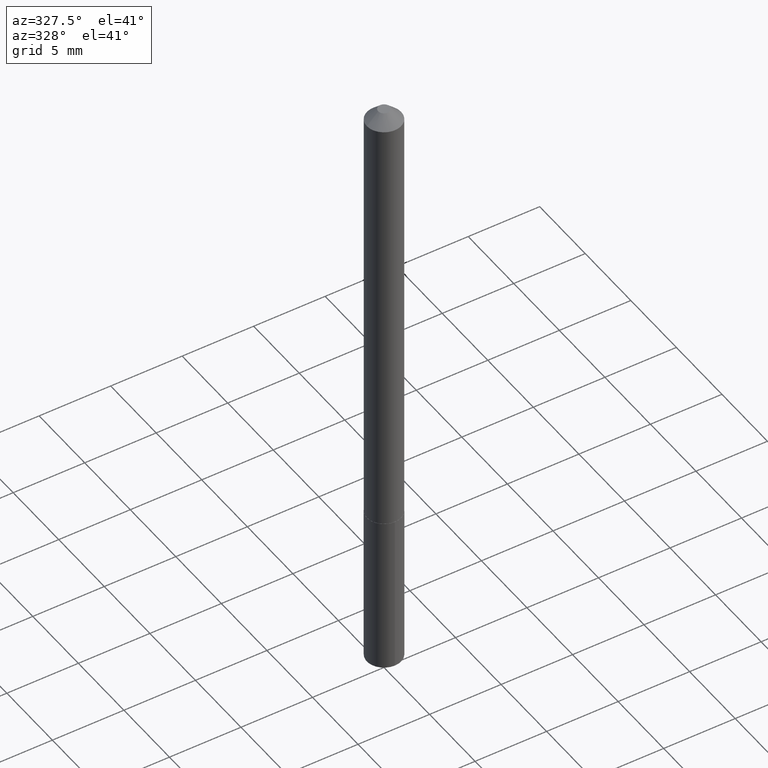
[diagram: clean part render]
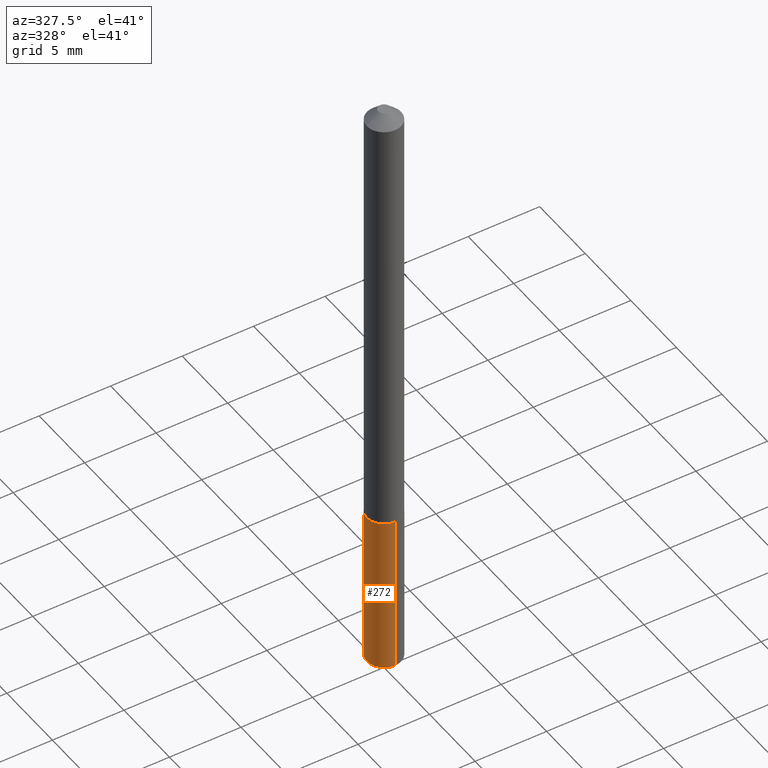
[diagram: same view with one face highlighted and labeled with its STEP entity id]
A machine part, auxiliary view. The second image highlights one B-rep face of the part: STEP entity #272.
In plain terms, the highlighted cylindrical surface (edge-blend (fillet) strip) has radius 1.2001 mm, axis along (-0, 0, 1).
Its self-contained STEP definition (entity closure, byte-faithful):
#11 = ORIENTED_EDGE ( 'NONE', *, *, #201, .F. ) ;
#20 = VERTEX_POINT ( 'NONE', #139 ) ;
#25 = AXIS2_PLACEMENT_3D ( 'NONE', #373, #277, #223 ) ;
#37 = CARTESIAN_POINT ( 'NONE',  ( 4.103511204680673828E-29, -5.858699764941837648E-15, -1.678002132225468346 ) ) ;
#66 = CARTESIAN_POINT ( 'NONE',  ( 3.023088538206066600E-29, -4.316169231077897395E-15, -1.236200000000000410 ) ) ;
#92 = CARTESIAN_POINT ( 'NONE',  ( -3.299449865206457842E-16, -0.04725000000000431633, -1.236199999999999966 ) ) ;
#106 = EDGE_CURVE ( 'NONE', #126, #182, #179, .T. ) ;
#108 = EDGE_LOOP ( 'NONE', ( #11, #140, #167, #202 ) ) ;
#123 = DIRECTION ( 'NONE',  ( -2.445489932409893586E-29, 3.491451084886863706E-15, 1.000000000000000000 ) ) ;
#126 = VERTEX_POINT ( 'NONE', #143 ) ;
#139 = CARTESIAN_POINT ( 'NONE',  ( 3.357314426466882624E-16, 0.04724999999999413003, -1.678002132225468790 ) ) ;
#140 = ORIENTED_EDGE ( 'NONE', *, *, #254, .T. ) ;
#143 = CARTESIAN_POINT ( 'NONE',  ( -3.299449865206349866E-16, -0.04725000000000584288, -1.678002132225468124 ) ) ;
#148 = DIRECTION ( 'NONE',  ( -2.445489932409893305E-29, 3.491451084886864100E-15, 1.000000000000000000 ) ) ;
#160 = LINE ( 'NONE', #286, #304 ) ;
#167 = ORIENTED_EDGE ( 'NONE', *, *, #106, .T. ) ;
#179 = LINE ( 'NONE', #303, #197 ) ;
#180 = EDGE_CURVE ( 'NONE', #270, #182, #379, .T. ) ;
#182 = VERTEX_POINT ( 'NONE', #92 ) ;
#188 = DIRECTION ( 'NONE',  ( -2.445489932409893586E-29, 3.491451084886863706E-15, 1.000000000000000000 ) ) ;
#190 = CARTESIAN_POINT ( 'NONE',  ( 3.357314426466883117E-16, 0.04724999999999567740, -1.236200000000000632 ) ) ;
#197 = VECTOR ( 'NONE', #148, 39.37007874015748143 ) ;
#201 = EDGE_CURVE ( 'NONE', #20, #270, #160, .T. ) ;
#202 = ORIENTED_EDGE ( 'NONE', *, *, #180, .F. ) ;
#213 = CIRCLE ( 'NONE', #225, 0.04724999999999999339 ) ;
#221 = FACE_OUTER_BOUND ( 'NONE', #108, .T. ) ;
#223 = DIRECTION ( 'NONE',  ( -6.982962677686265922E-15, -1.000000000000000000, 5.781688875479922944E-15 ) ) ;
#225 = AXIS2_PLACEMENT_3D ( 'NONE', #37, #123, #369 ) ;
#254 = EDGE_CURVE ( 'NONE', #20, #126, #213, .T. ) ;
#255 = CYLINDRICAL_SURFACE ( 'NONE', #284, 0.04724999999999999339 ) ;
#270 = VERTEX_POINT ( 'NONE', #190 ) ;
#272 = ADVANCED_FACE ( 'NONE', ( #221 ), #255, .T. ) ;
#277 = DIRECTION ( 'NONE',  ( -2.445489932409893586E-29, 3.491451084886863706E-15, 1.000000000000000000 ) ) ;
#284 = AXIS2_PLACEMENT_3D ( 'NONE', #66, #188, #312 ) ;
#286 = CARTESIAN_POINT ( 'NONE',  ( 3.357314426466774648E-16, 0.04724999999999567740, -1.236200000000000632 ) ) ;
#288 = DIRECTION ( 'NONE',  ( -2.445489932409893305E-29, 3.491451084886864100E-15, 1.000000000000000000 ) ) ;
#303 = CARTESIAN_POINT ( 'NONE',  ( -3.299449865206457842E-16, -0.04725000000000431633, -1.236199999999999966 ) ) ;
#304 = VECTOR ( 'NONE', #288, 39.37007874015748143 ) ;
#312 = DIRECTION ( 'NONE',  ( -6.982962677686265922E-15, -1.000000000000000000, 5.781688875479922944E-15 ) ) ;
#369 = DIRECTION ( 'NONE',  ( -6.982962677686265922E-15, -1.000000000000000000, 5.781688875479922944E-15 ) ) ;
#373 = CARTESIAN_POINT ( 'NONE',  ( 3.023088538206066600E-29, -4.316169231077897395E-15, -1.236200000000000410 ) ) ;
#379 = CIRCLE ( 'NONE', #25, 0.04724999999999999339 ) ;